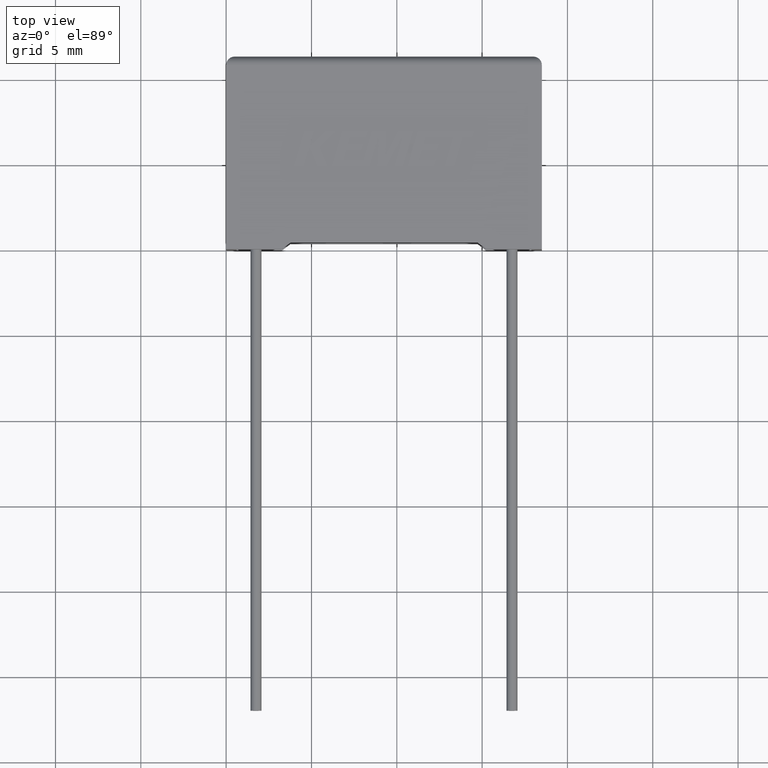
[diagram: clean part render]
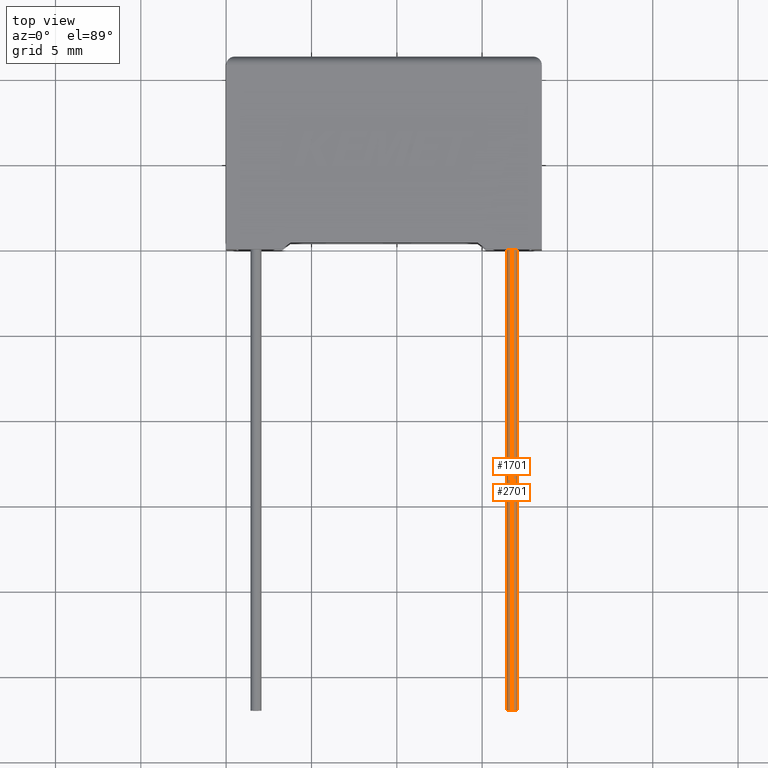
[diagram: same view with one multi-face feature highlighted, each face labeled with its STEP entity id]
A machine part, top view. The highlighted faces form ONE feature: a constant-radius fillet chain: 2 tangent blend faces with common blend radius 0.325 mm. The faces share edges in the B-rep.
Their STEP definitions:
[1] entity #1701 (Cylinder):
#144 = LINE ( 'NONE', #193, #2589 ) ;
#174 = AXIS2_PLACEMENT_3D ( 'NONE', #796, #2859, #1451 ) ;
#179 = DIRECTION ( 'NONE',  ( -0.000000000000000000, 1.000000000000000000, -0.000000000000000000 ) ) ;
#180 = AXIS2_PLACEMENT_3D ( 'NONE', #699, #2352, #1653 ) ;
#193 = CARTESIAN_POINT ( 'NONE',  ( 16.75000000000000000, -27.00000000000000000, 2.974999999999999645 ) ) ;
#254 = CIRCLE ( 'NONE', #174, 0.3249999999999997891 ) ;
#346 = VERTEX_POINT ( 'NONE', #2984 ) ;
#375 = DIRECTION ( 'NONE',  ( 0.000000000000000000, 0.000000000000000000, -1.000000000000000000 ) ) ;
#389 = ORIENTED_EDGE ( 'NONE', *, *, #2357, .T. ) ;
#465 = AXIS2_PLACEMENT_3D ( 'NONE', #3025, #2722, #375 ) ;
#618 = CIRCLE ( 'NONE', #465, 0.3249999999999997891 ) ;
#699 = CARTESIAN_POINT ( 'NONE',  ( 16.75000000000000000, -27.00000000000000000, 2.649999999999999911 ) ) ;
#739 = CYLINDRICAL_SURFACE ( 'NONE', #180, 0.3249999999999997891 ) ;
#796 = CARTESIAN_POINT ( 'NONE',  ( 16.75000000000000000, -27.00000000000000000, 2.649999999999999911 ) ) ;
#810 = EDGE_LOOP ( 'NONE', ( #2160, #389, #2598, #1202 ) ) ;
#830 = EDGE_CURVE ( 'NONE', #346, #3007, #1823, .T. ) ;
#1202 = ORIENTED_EDGE ( 'NONE', *, *, #2763, .T. ) ;
#1361 = CARTESIAN_POINT ( 'NONE',  ( 16.75000000000000000, 0.7500000000000006661, 2.325000000000000178 ) ) ;
#1367 = VECTOR ( 'NONE', #2497, 1000.000000000000000 ) ;
#1407 = FACE_OUTER_BOUND ( 'NONE', #810, .T. ) ;
#1451 = DIRECTION ( 'NONE',  ( 0.000000000000000000, 0.000000000000000000, -1.000000000000000000 ) ) ;
#1459 = VERTEX_POINT ( 'NONE', #2502 ) ;
#1594 = VERTEX_POINT ( 'NONE', #2521 ) ;
#1653 = DIRECTION ( 'NONE',  ( 0.000000000000000000, 0.000000000000000000, 1.000000000000000000 ) ) ;
#1701 = ADVANCED_FACE ( 'NONE', ( #1407 ), #739, .T. ) ;
#1823 = LINE ( 'NONE', #2750, #1367 ) ;
#2160 = ORIENTED_EDGE ( 'NONE', *, *, #830, .F. ) ;
#2352 = DIRECTION ( 'NONE',  ( -0.000000000000000000, 1.000000000000000000, -0.000000000000000000 ) ) ;
#2357 = EDGE_CURVE ( 'NONE', #346, #1594, #254, .T. ) ;
#2497 = DIRECTION ( 'NONE',  ( -0.000000000000000000, 1.000000000000000000, -0.000000000000000000 ) ) ;
#2502 = CARTESIAN_POINT ( 'NONE',  ( 16.75000000000000000, 0.7500000000000006661, 2.974999999999999645 ) ) ;
#2521 = CARTESIAN_POINT ( 'NONE',  ( 16.75000000000000000, -27.00000000000000000, 2.974999999999999645 ) ) ;
#2589 = VECTOR ( 'NONE', #179, 1000.000000000000000 ) ;
#2598 = ORIENTED_EDGE ( 'NONE', *, *, #3004, .T. ) ;
#2722 = DIRECTION ( 'NONE',  ( 0.000000000000000000, -1.000000000000000000, 0.000000000000000000 ) ) ;
#2750 = CARTESIAN_POINT ( 'NONE',  ( 16.75000000000000000, -27.00000000000000000, 2.325000000000000178 ) ) ;
#2763 = EDGE_CURVE ( 'NONE', #1459, #3007, #618, .T. ) ;
#2859 = DIRECTION ( 'NONE',  ( -0.000000000000000000, 1.000000000000000000, -0.000000000000000000 ) ) ;
#2984 = CARTESIAN_POINT ( 'NONE',  ( 16.75000000000000000, -27.00000000000000000, 2.325000000000000178 ) ) ;
#3004 = EDGE_CURVE ( 'NONE', #1594, #1459, #144, .T. ) ;
#3007 = VERTEX_POINT ( 'NONE', #1361 ) ;
#3025 = CARTESIAN_POINT ( 'NONE',  ( 16.75000000000000000, 0.7500000000000006661, 2.649999999999999911 ) ) ;
[2] entity #2701 (Cylinder):
#65 = EDGE_CURVE ( 'NONE', #1594, #346, #750, .T. ) ;
#144 = LINE ( 'NONE', #193, #2589 ) ;
#175 = DIRECTION ( 'NONE',  ( 0.000000000000000000, 0.000000000000000000, 1.000000000000000000 ) ) ;
#179 = DIRECTION ( 'NONE',  ( -0.000000000000000000, 1.000000000000000000, -0.000000000000000000 ) ) ;
#193 = CARTESIAN_POINT ( 'NONE',  ( 16.75000000000000000, -27.00000000000000000, 2.974999999999999645 ) ) ;
#299 = CARTESIAN_POINT ( 'NONE',  ( 16.75000000000000000, 0.7500000000000006661, 2.649999999999999911 ) ) ;
#346 = VERTEX_POINT ( 'NONE', #2984 ) ;
#419 = CIRCLE ( 'NONE', #1415, 0.3249999999999997891 ) ;
#508 = DIRECTION ( 'NONE',  ( -0.000000000000000000, 1.000000000000000000, -0.000000000000000000 ) ) ;
#525 = CARTESIAN_POINT ( 'NONE',  ( 16.75000000000000000, -27.00000000000000000, 2.649999999999999911 ) ) ;
#750 = CIRCLE ( 'NONE', #2529, 0.3249999999999997891 ) ;
#830 = EDGE_CURVE ( 'NONE', #346, #3007, #1823, .T. ) ;
#997 = ORIENTED_EDGE ( 'NONE', *, *, #2308, .T. ) ;
#1130 = CYLINDRICAL_SURFACE ( 'NONE', #2300, 0.3249999999999997891 ) ;
#1236 = DIRECTION ( 'NONE',  ( 0.000000000000000000, 0.000000000000000000, -1.000000000000000000 ) ) ;
#1253 = DIRECTION ( 'NONE',  ( 0.000000000000000000, -1.000000000000000000, 0.000000000000000000 ) ) ;
#1357 = CARTESIAN_POINT ( 'NONE',  ( 16.75000000000000000, -27.00000000000000000, 2.649999999999999911 ) ) ;
#1361 = CARTESIAN_POINT ( 'NONE',  ( 16.75000000000000000, 0.7500000000000006661, 2.325000000000000178 ) ) ;
#1367 = VECTOR ( 'NONE', #2497, 1000.000000000000000 ) ;
#1415 = AXIS2_PLACEMENT_3D ( 'NONE', #299, #1253, #1236 ) ;
#1459 = VERTEX_POINT ( 'NONE', #2502 ) ;
#1534 = ORIENTED_EDGE ( 'NONE', *, *, #3004, .F. ) ;
#1594 = VERTEX_POINT ( 'NONE', #2521 ) ;
#1620 = EDGE_LOOP ( 'NONE', ( #3000, #2302, #997, #1534 ) ) ;
#1791 = DIRECTION ( 'NONE',  ( -0.000000000000000000, 1.000000000000000000, -0.000000000000000000 ) ) ;
#1823 = LINE ( 'NONE', #2750, #1367 ) ;
#2300 = AXIS2_PLACEMENT_3D ( 'NONE', #1357, #1791, #175 ) ;
#2302 = ORIENTED_EDGE ( 'NONE', *, *, #830, .T. ) ;
#2308 = EDGE_CURVE ( 'NONE', #3007, #1459, #419, .T. ) ;
#2497 = DIRECTION ( 'NONE',  ( -0.000000000000000000, 1.000000000000000000, -0.000000000000000000 ) ) ;
#2502 = CARTESIAN_POINT ( 'NONE',  ( 16.75000000000000000, 0.7500000000000006661, 2.974999999999999645 ) ) ;
#2521 = CARTESIAN_POINT ( 'NONE',  ( 16.75000000000000000, -27.00000000000000000, 2.974999999999999645 ) ) ;
#2529 = AXIS2_PLACEMENT_3D ( 'NONE', #525, #508, #2891 ) ;
#2550 = FACE_OUTER_BOUND ( 'NONE', #1620, .T. ) ;
#2589 = VECTOR ( 'NONE', #179, 1000.000000000000000 ) ;
#2701 = ADVANCED_FACE ( 'NONE', ( #2550 ), #1130, .T. ) ;
#2750 = CARTESIAN_POINT ( 'NONE',  ( 16.75000000000000000, -27.00000000000000000, 2.325000000000000178 ) ) ;
#2891 = DIRECTION ( 'NONE',  ( 0.000000000000000000, 0.000000000000000000, -1.000000000000000000 ) ) ;
#2984 = CARTESIAN_POINT ( 'NONE',  ( 16.75000000000000000, -27.00000000000000000, 2.325000000000000178 ) ) ;
#3000 = ORIENTED_EDGE ( 'NONE', *, *, #65, .T. ) ;
#3004 = EDGE_CURVE ( 'NONE', #1594, #1459, #144, .T. ) ;
#3007 = VERTEX_POINT ( 'NONE', #1361 ) ;